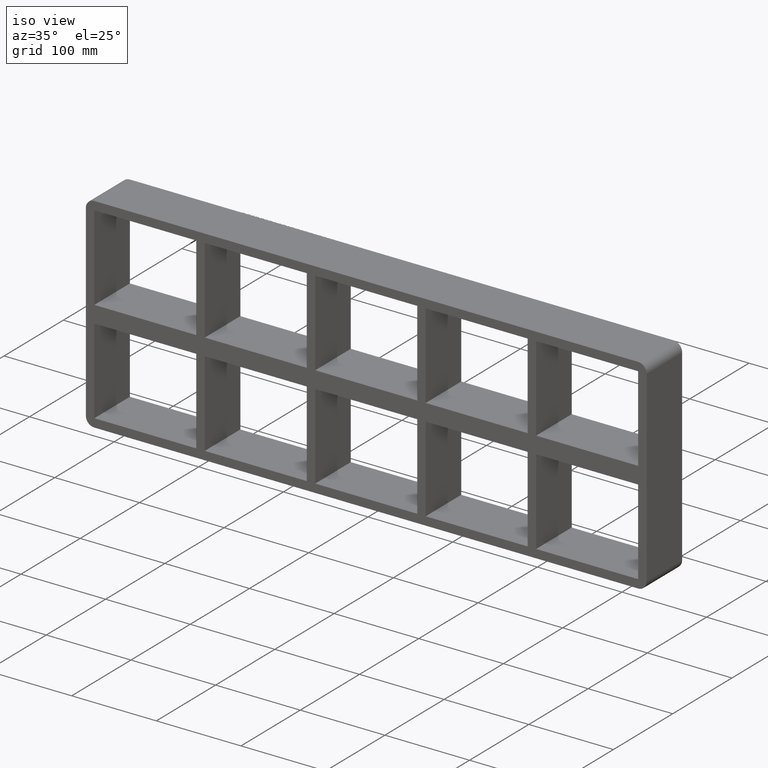
[diagram: clean part render]
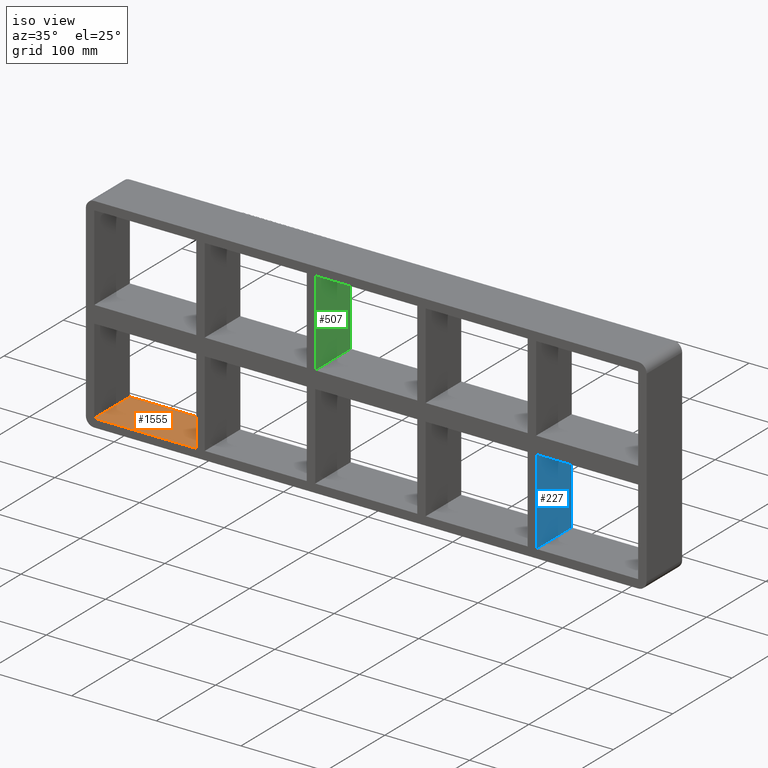
[diagram: same view with three faces highlighted in distinct colors, each labeled with its STEP entity id]
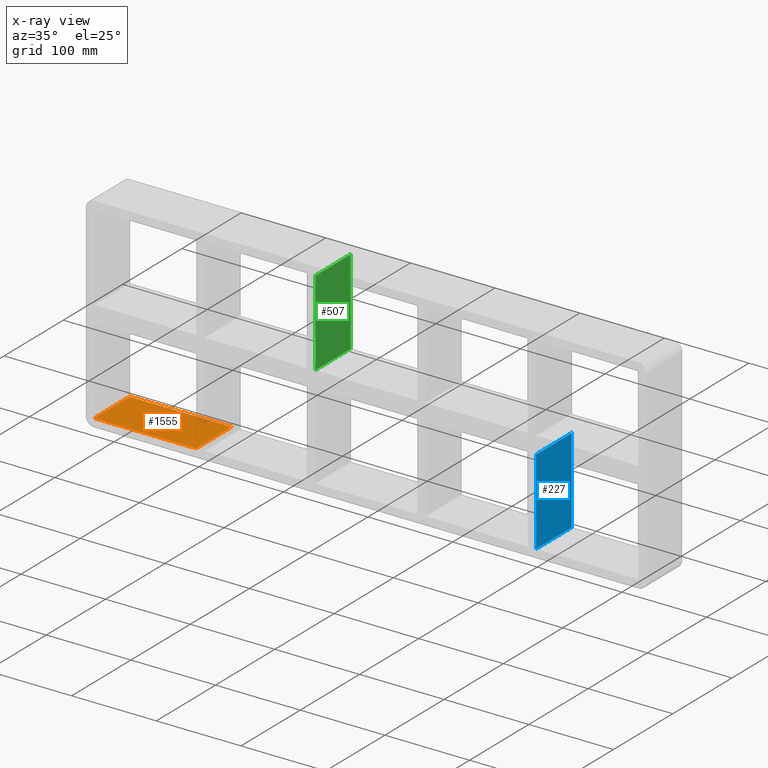
[diagram: x-ray of the same camera — body ghosted, the three highlighted faces saturated]
A machine part, iso view with three faces highlighted in distinct colors.
The next image is the same camera in x-ray (body ghosted, the three faces saturated) — at least one of them is partly hidden behind the body in this view.
Their STEP definitions:

[orange] entity #1555 — the highlighted planar face has unit normal (0, 0, -1).
#913=CARTESIAN_POINT('',(-200.75000000000131,-3.0,-111.00000000000001));
#914=VERTEX_POINT('',#913);
#921=CARTESIAN_POINT('',(-321.25,-3.0,-111.00000000000001));
#922=VERTEX_POINT('',#921);
#923=CARTESIAN_POINT('',(-200.75000000000131,-3.0,-111.00000000000001));
#924=DIRECTION('',(-1.0,0.0,0.0));
#925=VECTOR('',#924,120.49999999999869);
#926=LINE('',#923,#925);
#927=EDGE_CURVE('',#914,#922,#926,.T.);
#1210=CARTESIAN_POINT('',(-321.25,57.0,-111.00000000000001));
#1211=VERTEX_POINT('',#1210);
#1218=CARTESIAN_POINT('',(-200.75000000000131,57.0,-111.00000000000001));
#1219=VERTEX_POINT('',#1218);
#1220=CARTESIAN_POINT('',(-321.25,57.0,-111.00000000000001));
#1221=DIRECTION('',(1.0,0.0,0.0));
#1222=VECTOR('',#1221,120.49999999999869);
#1223=LINE('',#1220,#1222);
#1224=EDGE_CURVE('',#1211,#1219,#1223,.T.);
#1517=CARTESIAN_POINT('',(-200.75000000000131,-3.0,-111.00000000000001));
#1518=DIRECTION('',(0.0,1.0,0.0));
#1519=VECTOR('',#1518,60.000000000000007);
#1520=LINE('',#1517,#1519);
#1521=EDGE_CURVE('',#914,#1219,#1520,.T.);
#1539=CARTESIAN_POINT('',(321.25,0.0,-111.00000000000001));
#1540=DIRECTION('',(0.0,0.0,-1.0));
#1541=DIRECTION('',(-1.0,0.0,0.0));
#1542=AXIS2_PLACEMENT_3D('',#1539,#1540,#1541);
#1543=PLANE('',#1542);
#1544=ORIENTED_EDGE('',*,*,#1521,.T.);
#1545=ORIENTED_EDGE('',*,*,#1224,.F.);
#1546=CARTESIAN_POINT('',(-321.25,-3.0,-111.00000000000001));
#1547=DIRECTION('',(0.0,1.0,0.0));
#1548=VECTOR('',#1547,60.0);
#1549=LINE('',#1546,#1548);
#1550=EDGE_CURVE('',#922,#1211,#1549,.T.);
#1551=ORIENTED_EDGE('',*,*,#1550,.F.);
#1552=ORIENTED_EDGE('',*,*,#927,.F.);
#1553=EDGE_LOOP('',(#1544,#1545,#1551,#1552));
#1554=FACE_OUTER_BOUND('',#1553,.T.);
#1555=ADVANCED_FACE('',(#1554),#1543,.F.);

[blue] entity #227 — the highlighted planar face has unit normal (1, 0, 0).
#188=CARTESIAN_POINT('',(200.74999999999278,-3.0,111.00000000000001));
#189=DIRECTION('',(1.0,0.0,0.0));
#190=DIRECTION('',(0.0,0.0,-1.0));
#191=AXIS2_PLACEMENT_3D('',#188,#189,#190);
#192=PLANE('',#191);
#193=CARTESIAN_POINT('',(200.74999999999278,-3.0,-10.000000000009344));
#194=VERTEX_POINT('',#193);
#195=CARTESIAN_POINT('',(200.74999999999278,57.0,-10.000000000009344));
#196=VERTEX_POINT('',#195);
#197=CARTESIAN_POINT('',(200.74999999999278,-3.0,-10.000000000009353));
#198=DIRECTION('',(0.0,1.0,0.0));
#199=VECTOR('',#198,60.0);
#200=LINE('',#197,#199);
#201=EDGE_CURVE('',#194,#196,#200,.T.);
#202=ORIENTED_EDGE('',*,*,#201,.F.);
#203=CARTESIAN_POINT('',(200.74999999999278,-3.0,-110.99999999998417));
#204=VERTEX_POINT('',#203);
#205=CARTESIAN_POINT('',(200.74999999999278,-3.0,-10.000000000009337));
#206=DIRECTION('',(0.0,0.0,-1.0));
#207=VECTOR('',#206,100.99999999997485);
#208=LINE('',#205,#207);
#209=EDGE_CURVE('',#194,#204,#208,.T.);
#210=ORIENTED_EDGE('',*,*,#209,.T.);
#211=CARTESIAN_POINT('',(200.74999999999278,57.0,-110.99999999998417));
#212=VERTEX_POINT('',#211);
#213=CARTESIAN_POINT('',(200.74999999999278,57.000000000000007,-111.00000000000001));
#214=DIRECTION('',(0.0,-1.0,0.0));
#215=VECTOR('',#214,60.000000000000007);
#216=LINE('',#213,#215);
#217=EDGE_CURVE('',#212,#204,#216,.T.);
#218=ORIENTED_EDGE('',*,*,#217,.F.);
#219=CARTESIAN_POINT('',(200.74999999999278,57.0,-10.000000000009337));
#220=DIRECTION('',(0.0,0.0,-1.0));
#221=VECTOR('',#220,100.99999999997485);
#222=LINE('',#219,#221);
#223=EDGE_CURVE('',#196,#212,#222,.T.);
#224=ORIENTED_EDGE('',*,*,#223,.F.);
#225=EDGE_LOOP('',(#202,#210,#218,#224));
#226=FACE_OUTER_BOUND('',#225,.T.);
#227=ADVANCED_FACE('',(#226),#192,.T.);

[green] entity #507 — the highlighted planar face has unit normal (1, 0, 0).
#468=CARTESIAN_POINT('',(-60.250000000007269,-3.0,111.00000000000001));
#469=DIRECTION('',(1.0,0.0,0.0));
#470=DIRECTION('',(0.0,0.0,-1.0));
#471=AXIS2_PLACEMENT_3D('',#468,#469,#470);
#472=PLANE('',#471);
#473=CARTESIAN_POINT('',(-60.250000000007269,57.0,10.0));
#474=VERTEX_POINT('',#473);
#475=CARTESIAN_POINT('',(-60.250000000007269,-3.0,10.0));
#476=VERTEX_POINT('',#475);
#477=CARTESIAN_POINT('',(-60.250000000007248,57.0,10.0));
#478=DIRECTION('',(0.0,-1.0,0.0));
#479=VECTOR('',#478,60.0);
#480=LINE('',#477,#479);
#481=EDGE_CURVE('',#474,#476,#480,.T.);
#482=ORIENTED_EDGE('',*,*,#481,.F.);
#483=CARTESIAN_POINT('',(-60.250000000007269,57.0,111.00000000000001));
#484=VERTEX_POINT('',#483);
#485=CARTESIAN_POINT('',(-60.250000000007269,57.0,111.00000000000001));
#486=DIRECTION('',(0.0,0.0,-1.0));
#487=VECTOR('',#486,101.00000000000001);
#488=LINE('',#485,#487);
#489=EDGE_CURVE('',#484,#474,#488,.T.);
#490=ORIENTED_EDGE('',*,*,#489,.F.);
#491=CARTESIAN_POINT('',(-60.250000000007269,-3.0,111.00000000000001));
#492=VERTEX_POINT('',#491);
#493=CARTESIAN_POINT('',(-60.25000000000729,-3.0,111.00000000000001));
#494=DIRECTION('',(0.0,1.0,0.0));
#495=VECTOR('',#494,60.000000000000007);
#496=LINE('',#493,#495);
#497=EDGE_CURVE('',#492,#484,#496,.T.);
#498=ORIENTED_EDGE('',*,*,#497,.F.);
#499=CARTESIAN_POINT('',(-60.250000000007269,-3.0,111.00000000000001));
#500=DIRECTION('',(0.0,0.0,-1.0));
#501=VECTOR('',#500,101.00000000000001);
#502=LINE('',#499,#501);
#503=EDGE_CURVE('',#492,#476,#502,.T.);
#504=ORIENTED_EDGE('',*,*,#503,.T.);
#505=EDGE_LOOP('',(#482,#490,#498,#504));
#506=FACE_OUTER_BOUND('',#505,.T.);
#507=ADVANCED_FACE('',(#506),#472,.T.);